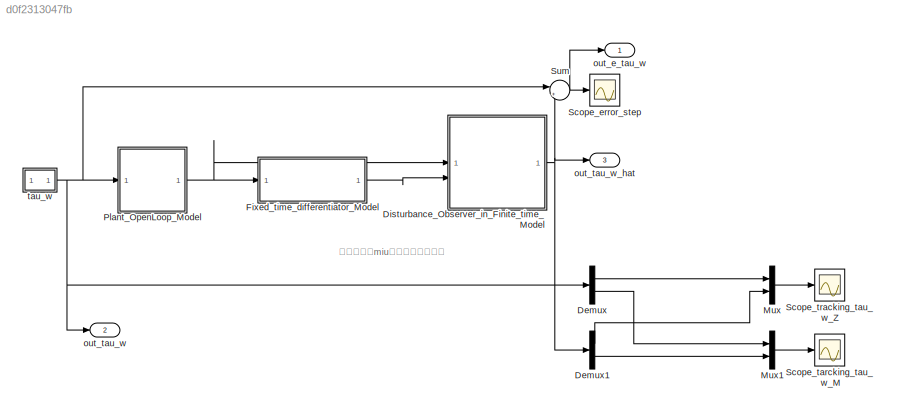
MODEL slx_d0f2313047fb
KIND model
CONFIG AbsTol = auto
CONFIG EnableMultiTasking = off
CONFIG FixedStep = 0.0002
CONFIG MaxStep = auto
CONFIG MinStep = auto
CONFIG RelTol = 1e-3
CONFIG SampleTimeConstraint = Unconstrained
CONFIG SolverName = FixedStepAuto
CONFIG StartTime = 0.0
CONFIG StopTime = 150
WORKSPACE source: external: MAT-File  (data not in archive)
BLOCK [Demux] Demux
  Outputs = 2
BLOCK [Demux] Demux1
  Outputs = 2
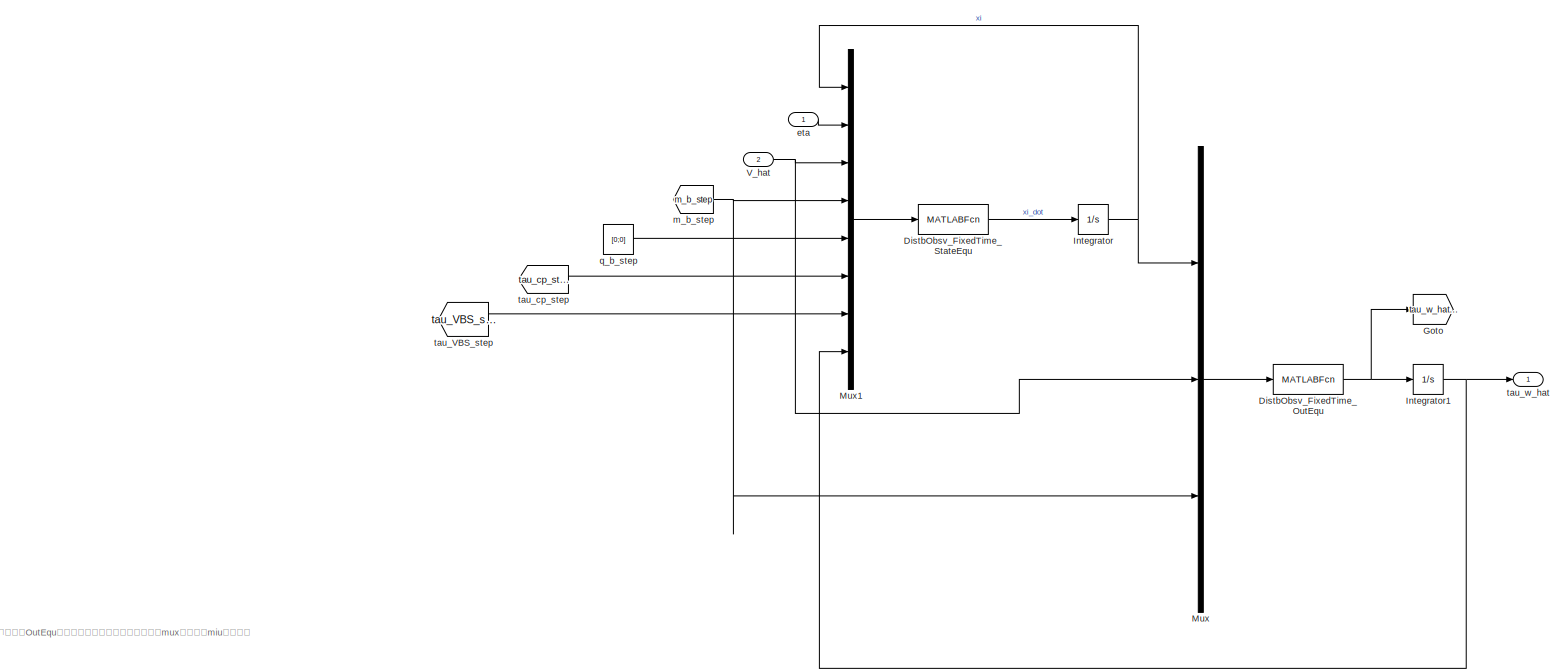
[diagram: Disturbance_Observer_in_Finite_time_Model - part 1/1, most of the canvas]
BLOCK [SubSystem] Disturbance_Observer_in_Finite_time_Model
BLOCK [MATLABFcn] Disturbance_Observer_in_Finite_time_Model/DistbObsv_FixedTime_OutEqu
  MATLABFcn = DistbObsv_FixedTime_OutEqu
  OutputDimensions = 2
  OutputSignalType = real
BLOCK [MATLABFcn] Disturbance_Observer_in_Finite_time_Model/DistbObsv_FixedTime_StateEqu
  MATLABFcn = DistbObsv_FixedTime_StateEqu
  OutputDimensions = 2
  OutputSignalType = real
BLOCK [Goto] Disturbance_Observer_in_Finite_time_Model/Goto
  GotoTag = tau_w_hat_dot
BLOCK [Integrator] Disturbance_Observer_in_Finite_time_Model/Integrator
BLOCK [Integrator] Disturbance_Observer_in_Finite_time_Model/Integrator1
BLOCK [Mux] Disturbance_Observer_in_Finite_time_Model/Mux
  DisplayOption = bar
  Inputs = 3
BLOCK [Mux] Disturbance_Observer_in_Finite_time_Model/Mux1
  DisplayOption = bar
  Inputs = 8
BLOCK [Inport] Disturbance_Observer_in_Finite_time_Model/V_hat
  Port = 2
  PortDimensions = 2
BLOCK [Inport] Disturbance_Observer_in_Finite_time_Model/eta
  PortDimensions = 2
BLOCK [From] Disturbance_Observer_in_Finite_time_Model/m_b_step
  GotoTag = m_b_step
  TagVisibility = global
BLOCK [Constant] Disturbance_Observer_in_Finite_time_Model/q_b_step
  Value = [0;0]
BLOCK [From] Disturbance_Observer_in_Finite_time_Model/tau_VBS_step
  GotoTag = tau_VBS_step
  TagVisibility = global
BLOCK [From] Disturbance_Observer_in_Finite_time_Model/tau_cp_step
  GotoTag = tau_cp_step
  TagVisibility = global
BLOCK [Outport] Disturbance_Observer_in_Finite_time_Model/tau_w_hat
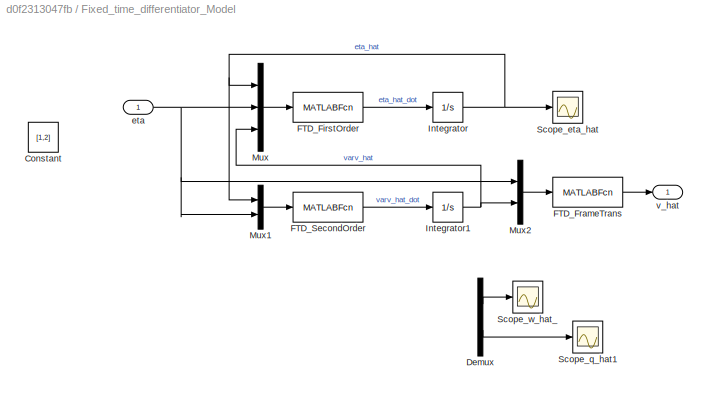
BLOCK [SubSystem] Fixed_time_differentiator_Model
BLOCK [Constant] Fixed_time_differentiator_Model/Constant
  Value = [1,2]
BLOCK [Demux] Fixed_time_differentiator_Model/Demux
  Outputs = 2
BLOCK [MATLABFcn] Fixed_time_differentiator_Model/FTD_FirstOrder
  MATLABFcn = FTD_FirstOrder
  OutputDimensions = 2
BLOCK [MATLABFcn] Fixed_time_differentiator_Model/FTD_FrameTrans
  MATLABFcn = FTD_FrameTrans
BLOCK [MATLABFcn] Fixed_time_differentiator_Model/FTD_SecondOrder
  MATLABFcn = FTD_SecondOrder
  OutputDimensions = 2
BLOCK [Integrator] Fixed_time_differentiator_Model/Integrator
BLOCK [Integrator] Fixed_time_differentiator_Model/Integrator1
BLOCK [Mux] Fixed_time_differentiator_Model/Mux
  DisplayOption = bar
  Inputs = 3
BLOCK [Mux] Fixed_time_differentiator_Model/Mux1
  DisplayOption = bar
  Inputs = 2
BLOCK [Mux] Fixed_time_differentiator_Model/Mux2
  DisplayOption = bar
  Inputs = 2
BLOCK [Scope] Fixed_time_differentiator_Model/Scope_eta_hat
  Floating = off
  NumInputPorts = 1
  ScopeSpecificationString = Simulink.scopes.TimeScopeBlockCfg('CurrentConfiguration', extmgr.ConfigurationSet(extmgr.Configuration('Core','General UI',true),extmgr.Configuration('Core','Source UI',true),extmgr.Configuration('Sources','WiredSimulink',true,'DataLoggingVariableName','ScopeData1'),extmgr.Configuration('Visuals','Time Domain',true,'SerializedDisplays',{struct('MinYLimReal','-15051228326719683422998310475485230626...<+3556ch>
BLOCK [Scope] Fixed_time_differentiator_Model/Scope_q_hat1
  Floating = off
  NumInputPorts = 1
  ScopeSpecificationString = Simulink.scopes.TimeScopeBlockCfg('CurrentConfiguration', extmgr.ConfigurationSet(extmgr.Configuration('Core','General UI',true),extmgr.Configuration('Core','Source UI',true),extmgr.Configuration('Sources','WiredSimulink',true,'DataLoggingVariableName','ScopeData2'),extmgr.Configuration('Visuals','Time Domain',true,'SerializedDisplays',{struct('MinYLimReal','-1.1735','MaxYLimReal','10.38134','YLab...<+1401ch>
BLOCK [Scope] Fixed_time_differentiator_Model/Scope_w_hat_
  Floating = off
  NumInputPorts = 1
  ScopeSpecificationString = Simulink.scopes.TimeScopeBlockCfg('CurrentConfiguration', extmgr.ConfigurationSet(extmgr.Configuration('Core','General UI',true),extmgr.Configuration('Core','Source UI',true),extmgr.Configuration('Sources','WiredSimulink',true),extmgr.Configuration('Visuals','Time Domain',true,'SerializedDisplays',{struct('MinYLimReal','-16.18124','MaxYLimReal','-0.62236','YLabelReal','','MinYLimMag','0.00000','Ma...<+1365ch>
BLOCK [Inport] Fixed_time_differentiator_Model/eta
BLOCK [Outport] Fixed_time_differentiator_Model/v_hat
BLOCK [Mux] Mux
  DisplayOption = bar
  Inputs = 2
BLOCK [Mux] Mux1
  DisplayOption = bar
  Inputs = 2
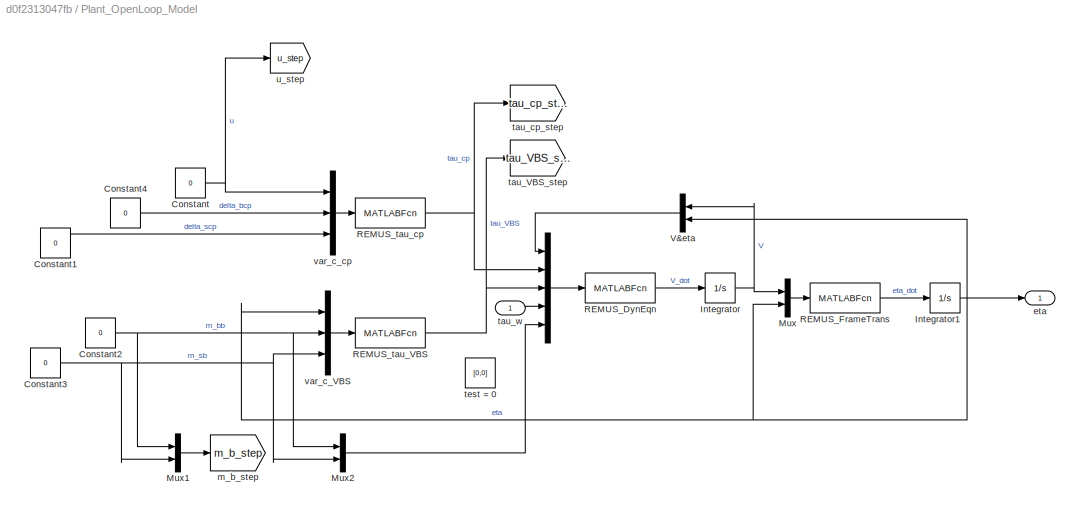
BLOCK [SubSystem] Plant_OpenLoop_Model
BLOCK [Mux] Plant_OpenLoop_Model/ 
  DisplayOption = bar
  Inputs = 5
BLOCK [Constant] Plant_OpenLoop_Model/Constant
  Value = 0
BLOCK [Constant] Plant_OpenLoop_Model/Constant1
  Value = 0
BLOCK [Constant] Plant_OpenLoop_Model/Constant2
  Value = 0
BLOCK [Constant] Plant_OpenLoop_Model/Constant3
  Value = 0
BLOCK [Constant] Plant_OpenLoop_Model/Constant4
  Value = 0
BLOCK [Integrator] Plant_OpenLoop_Model/Integrator
BLOCK [Integrator] Plant_OpenLoop_Model/Integrator1
BLOCK [Mux] Plant_OpenLoop_Model/Mux
  DisplayOption = bar
  Inputs = 2
BLOCK [Mux] Plant_OpenLoop_Model/Mux1
  DisplayOption = bar
  Inputs = 2
BLOCK [Mux] Plant_OpenLoop_Model/Mux2
  DisplayOption = bar
  Inputs = 2
BLOCK [MATLABFcn] Plant_OpenLoop_Model/REMUS_DynEqn
  MATLABFcn = REMUS_DynEqn
  OutputDimensions = 2
BLOCK [MATLABFcn] Plant_OpenLoop_Model/REMUS_FrameTrans
  MATLABFcn = REMUS_FrameTrans
  OutputDimensions = 2
BLOCK [MATLABFcn] Plant_OpenLoop_Model/REMUS_tau_VBS
  MATLABFcn = REMUS_tau_VBS
  OutputDimensions = 2
BLOCK [MATLABFcn] Plant_OpenLoop_Model/REMUS_tau_cp
  MATLABFcn = REMUS_tau_cp
  OutputDimensions = 2
BLOCK [Mux] Plant_OpenLoop_Model/V&eta
  DisplayOption = bar
  Inputs = 2
  NameLocation = top
BLOCK [Outport] Plant_OpenLoop_Model/eta
BLOCK [Goto] Plant_OpenLoop_Model/m_b_step
  GotoTag = m_b_step
  TagVisibility = global
BLOCK [Goto] Plant_OpenLoop_Model/tau_VBS_step
  GotoTag = tau_VBS_step
  TagVisibility = global
BLOCK [Goto] Plant_OpenLoop_Model/tau_cp_step
  GotoTag = tau_cp_step
  TagVisibility = global
BLOCK [Inport] Plant_OpenLoop_Model/tau_w
BLOCK [Constant] Plant_OpenLoop_Model/test = 0
  Value = [0,0]
BLOCK [Goto] Plant_OpenLoop_Model/u_step
  GotoTag = u_step
  TagVisibility = global
BLOCK [Mux] Plant_OpenLoop_Model/var_c_VBS
  DisplayOption = bar
  Inputs = 3
BLOCK [Mux] Plant_OpenLoop_Model/var_c_cp
  DisplayOption = bar
  Inputs = 3
BLOCK [Scope] Scope_error_step
  Floating = off
  NumInputPorts = 1
  ScopeSpecificationString = Simulink.scopes.TimeScopeBlockCfg('CurrentConfiguration', extmgr.ConfigurationSet(extmgr.Configuration('Core','General UI',true),extmgr.Configuration('Core','Source UI',true),extmgr.Configuration('Sources','WiredSimulink',true,'DataLoggingVariableName','ScopeData1'),extmgr.Configuration('Visuals','Time Domain',true,'SerializedDisplays',{struct('MinYLimReal','-0.40079','MaxYLimReal','0.43462','YLab...<+1445ch>
BLOCK [Scope] Scope_tarcking_tau_w_M
  Floating = off
  NumInputPorts = 1
  ScopeSpecificationString = Simulink.scopes.TimeScopeBlockCfg('CurrentConfiguration', extmgr.ConfigurationSet(extmgr.Configuration('Core','General UI',true),extmgr.Configuration('Core','Source UI',true),extmgr.Configuration('Sources','WiredSimulink',true,'DataLoggingVariableName','ScopeData2'),extmgr.Configuration('Visuals','Time Domain',true,'SerializedDisplays',{struct('MinYLimReal','-0.19912','MaxYLimReal','0.1482','YLabe...<+1429ch>
BLOCK [Scope] Scope_tracking_tau_w_Z
  Floating = off
  NumInputPorts = 1
  ScopeSpecificationString = Simulink.scopes.TimeScopeBlockCfg('CurrentConfiguration', extmgr.ConfigurationSet(extmgr.Configuration('Core','General UI',true),extmgr.Configuration('Core','Source UI',true),extmgr.Configuration('Sources','WiredSimulink',true,'DataLoggingVariableName','ScopeData1'),extmgr.Configuration('Visuals','Time Domain',true,'SerializedDisplays',{struct('MinYLimReal','-0.29925','MaxYLimReal','0.46313','YLab...<+1431ch>
BLOCK [Sum] Sum
  Inputs = |+-
BLOCK [Outport] out_e_tau_w
BLOCK [Outport] out_tau_w
  Port = 2
BLOCK [Outport] out_tau_w_hat
  Port = 3
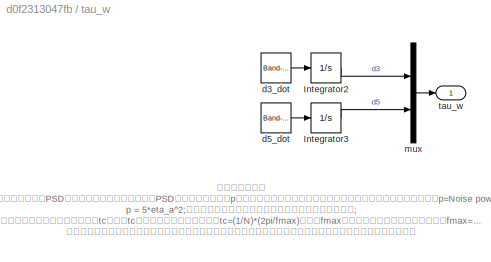
BLOCK [SubSystem] tau_w
BLOCK [Integrator] tau_w/Integrator2
BLOCK [Integrator] tau_w/Integrator3
BLOCK [Reference] tau_w/d3_dot  REF=simulink/Sources/Band-Limited
White Noise
  SourceBlock = simulink/Sources/Band-Limited\nWhite Noise
  SourceType = Band-Limited White Noise.
BLOCK [Reference] tau_w/d5_dot  REF=simulink/Sources/Band-Limited
White Noise
  SourceBlock = simulink/Sources/Band-Limited\nWhite Noise
  SourceType = Band-Limited White Noise.
BLOCK [Mux] tau_w/mux
  DisplayOption = bar
  Inputs = 2
BLOCK [Outport] tau_w/tau_w
  SignalType = real
ANNOTATION (root): 注：这里的miu是可调且测试参数
ANNOTATION Disturbance_Observer_in_Finite_time_Model: 注：这里的OutEqu是采用的调试版本，进行的修改，mux组后一维miu可以省略
ANNOTATION tau_w: 高斯白噪声模块 噪声功率：指定白噪声PSD（能量谱密度）的高度，这个PSD并不是噪声的能量p（并且这个能量的分布是常值），它与能量之间有一个转换关系，p=Noise power/tc，tc就在下面；默认值为0.1。S(w) = 0.5*eta_a^2; p = 5*eta_a^2;也就是说此处的噪声能量相当于信号幅值平方的平均值; 采样时间：指定噪声的相关时间tc，这个tc与系统的带宽之间的关系是tc=(1/N)*(2pi/fmax)，其中fmax是系统的带宽（实际上是角频率，fmax=2*pi*f，这个f才是我们常使用的频率Hz），N可以看成是采样率与系统频率的倍数关系（文档中推荐使用100），即采样率=N*系统频率，这和采样定理一致；默认值是0.1。 种子：这个参数是用来指定随机数生成器的初始值的，即种子，指定随机数生成器的起始种子。相当于不同相位。
LINE Demux1:1 -> Mux:2
LINE Demux1:2 -> Mux1:2
LINE Demux:1 -> Mux:1
LINE Demux:2 -> Mux1:1
NET Disturbance_Observer_in_Finite_time_Model/DistbObsv_FixedTime_OutEqu:1 -> Disturbance_Observer_in_Finite_time_Model/Goto:1, Disturbance_Observer_in_Finite_time_Model/Integrator1:1
LINE Disturbance_Observer_in_Finite_time_Model/DistbObsv_FixedTime_StateEqu:1 -> Disturbance_Observer_in_Finite_time_Model/Integrator:1
NET Disturbance_Observer_in_Finite_time_Model/Integrator1:1 -> Disturbance_Observer_in_Finite_time_Model/Mux1:8, Disturbance_Observer_in_Finite_time_Model/tau_w_hat:1
NET Disturbance_Observer_in_Finite_time_Model/Integrator:1 -> Disturbance_Observer_in_Finite_time_Model/Mux1:1, Disturbance_Observer_in_Finite_time_Model/Mux:1
LINE Disturbance_Observer_in_Finite_time_Model/Mux1:1 -> Disturbance_Observer_in_Finite_time_Model/DistbObsv_FixedTime_StateEqu:1
LINE Disturbance_Observer_in_Finite_time_Model/Mux:1 -> Disturbance_Observer_in_Finite_time_Model/DistbObsv_FixedTime_OutEqu:1
NET Disturbance_Observer_in_Finite_time_Model/V_hat:1 -> Disturbance_Observer_in_Finite_time_Model/Mux1:3, Disturbance_Observer_in_Finite_time_Model/Mux:2
LINE Disturbance_Observer_in_Finite_time_Model/eta:1 -> Disturbance_Observer_in_Finite_time_Model/Mux1:2
NET Disturbance_Observer_in_Finite_time_Model/m_b_step:1 -> Disturbance_Observer_in_Finite_time_Model/Mux1:4, Disturbance_Observer_in_Finite_time_Model/Mux:3
LINE Disturbance_Observer_in_Finite_time_Model/q_b_step:1 -> Disturbance_Observer_in_Finite_time_Model/Mux1:5
LINE Disturbance_Observer_in_Finite_time_Model/tau_VBS_step:1 -> Disturbance_Observer_in_Finite_time_Model/Mux1:7
LINE Disturbance_Observer_in_Finite_time_Model/tau_cp_step:1 -> Disturbance_Observer_in_Finite_time_Model/Mux1:6
NET Disturbance_Observer_in_Finite_time_Model:1 -> Demux1:1, Sum:2, out_tau_w_hat:1
LINE Fixed_time_differentiator_Model/Demux:1 -> Fixed_time_differentiator_Model/Scope_w_hat_:1
LINE Fixed_time_differentiator_Model/Demux:2 -> Fixed_time_differentiator_Model/Scope_q_hat1:1
LINE Fixed_time_differentiator_Model/FTD_FirstOrder:1 -> Fixed_time_differentiator_Model/Integrator:1
LINE Fixed_time_differentiator_Model/FTD_FrameTrans:1 -> Fixed_time_differentiator_Model/v_hat:1
LINE Fixed_time_differentiator_Model/FTD_SecondOrder:1 -> Fixed_time_differentiator_Model/Integrator1:1
NET Fixed_time_differentiator_Model/Integrator1:1 -> Fixed_time_differentiator_Model/Mux2:2, Fixed_time_differentiator_Model/Mux:3
NET Fixed_time_differentiator_Model/Integrator:1 -> Fixed_time_differentiator_Model/Mux1:1, Fixed_time_differentiator_Model/Mux:1, Fixed_time_differentiator_Model/Scope_eta_hat:1
LINE Fixed_time_differentiator_Model/Mux1:1 -> Fixed_time_differentiator_Model/FTD_SecondOrder:1
LINE Fixed_time_differentiator_Model/Mux2:1 -> Fixed_time_differentiator_Model/FTD_FrameTrans:1
LINE Fixed_time_differentiator_Model/Mux:1 -> Fixed_time_differentiator_Model/FTD_FirstOrder:1
NET Fixed_time_differentiator_Model/eta:1 -> Fixed_time_differentiator_Model/Mux1:2, Fixed_time_differentiator_Model/Mux2:1, Fixed_time_differentiator_Model/Mux:2
LINE Fixed_time_differentiator_Model:1 -> Disturbance_Observer_in_Finite_time_Model:2
LINE Mux1:1 -> Scope_tarcking_tau_w_M:1
LINE Mux:1 -> Scope_tracking_tau_w_Z:1
LINE Plant_OpenLoop_Model/ :1 -> Plant_OpenLoop_Model/REMUS_DynEqn:1
LINE Plant_OpenLoop_Model/Constant1:1 -> Plant_OpenLoop_Model/var_c_cp:3
NET Plant_OpenLoop_Model/Constant2:1 -> Plant_OpenLoop_Model/Mux1:1, Plant_OpenLoop_Model/Mux2:1, Plant_OpenLoop_Model/var_c_VBS:2
NET Plant_OpenLoop_Model/Constant3:1 -> Plant_OpenLoop_Model/Mux1:2, Plant_OpenLoop_Model/Mux2:2, Plant_OpenLoop_Model/var_c_VBS:3
LINE Plant_OpenLoop_Model/Constant4:1 -> Plant_OpenLoop_Model/var_c_cp:2
NET Plant_OpenLoop_Model/Constant:1 -> Plant_OpenLoop_Model/u_step:1, Plant_OpenLoop_Model/var_c_cp:1
NET Plant_OpenLoop_Model/Integrator1:1 -> Plant_OpenLoop_Model/Mux:2, Plant_OpenLoop_Model/V&eta:2, Plant_OpenLoop_Model/eta:1, Plant_OpenLoop_Model/var_c_VBS:1
NET Plant_OpenLoop_Model/Integrator:1 -> Plant_OpenLoop_Model/Mux:1, Plant_OpenLoop_Model/V&eta:1
LINE Plant_OpenLoop_Model/Mux1:1 -> Plant_OpenLoop_Model/m_b_step:1
LINE Plant_OpenLoop_Model/Mux2:1 -> Plant_OpenLoop_Model/ :5
LINE Plant_OpenLoop_Model/Mux:1 -> Plant_OpenLoop_Model/REMUS_FrameTrans:1
LINE Plant_OpenLoop_Model/REMUS_DynEqn:1 -> Plant_OpenLoop_Model/Integrator:1
LINE Plant_OpenLoop_Model/REMUS_FrameTrans:1 -> Plant_OpenLoop_Model/Integrator1:1
NET Plant_OpenLoop_Model/REMUS_tau_VBS:1 -> Plant_OpenLoop_Model/ :3, Plant_OpenLoop_Model/tau_VBS_step:1
NET Plant_OpenLoop_Model/REMUS_tau_cp:1 -> Plant_OpenLoop_Model/ :2, Plant_OpenLoop_Model/tau_cp_step:1
LINE Plant_OpenLoop_Model/V&eta:1 -> Plant_OpenLoop_Model/ :1
LINE Plant_OpenLoop_Model/tau_w:1 -> Plant_OpenLoop_Model/ :4
LINE Plant_OpenLoop_Model/var_c_VBS:1 -> Plant_OpenLoop_Model/REMUS_tau_VBS:1
LINE Plant_OpenLoop_Model/var_c_cp:1 -> Plant_OpenLoop_Model/REMUS_tau_cp:1
NET Plant_OpenLoop_Model:1 -> Disturbance_Observer_in_Finite_time_Model:1, Fixed_time_differentiator_Model:1
NET Sum:1 -> Scope_error_step:1, out_e_tau_w:1
LINE tau_w/Integrator2:1 -> tau_w/mux:1
LINE tau_w/Integrator3:1 -> tau_w/mux:2
LINE tau_w/d3_dot:1 -> tau_w/Integrator2:1
LINE tau_w/d5_dot:1 -> tau_w/Integrator3:1
LINE tau_w/mux:1 -> tau_w/tau_w:1
NET tau_w:1 -> Demux:1, Plant_OpenLoop_Model:1, Sum:1, out_tau_w:1
note: NET lines group one-source signal fan-out (src -> all destinations, sorted); 1:1 wires keep LINE
